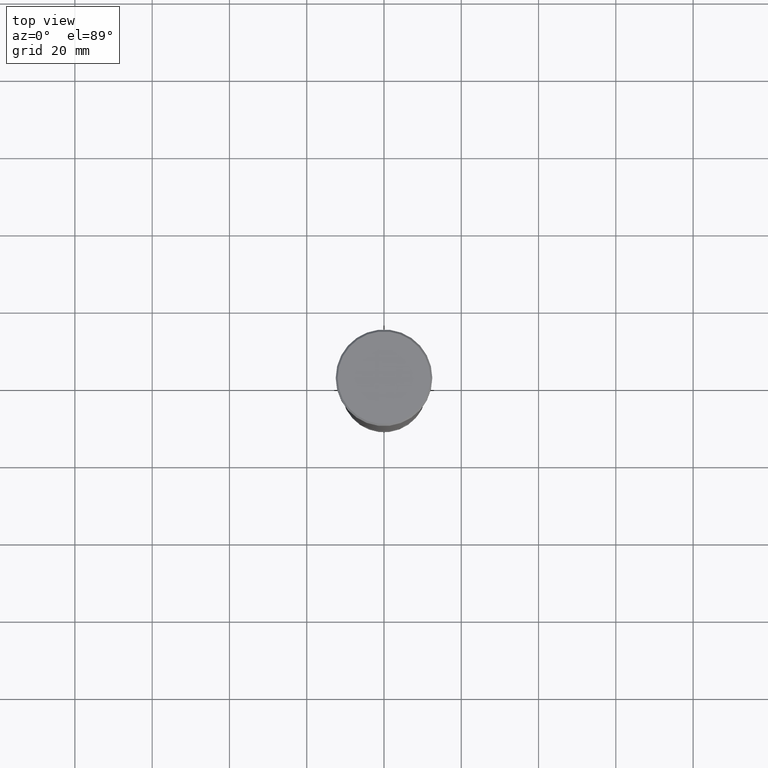
[diagram: clean part render]
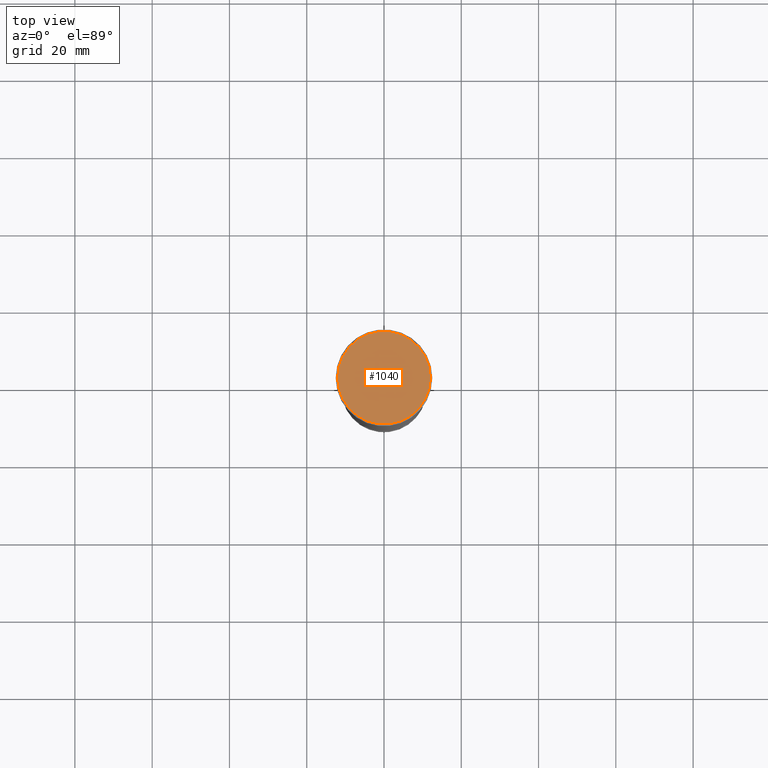
[diagram: same view with one face highlighted and labeled with its STEP entity id]
A machine part, top view. The second image highlights one B-rep face of the part: STEP entity #1040.
In plain terms, the highlighted planar face has unit normal (0, -0, 1).
Its self-contained STEP definition (entity closure, byte-faithful):
#8 = VERTEX_POINT ( 'NONE', #822 ) ;
#16 = DIRECTION ( 'NONE',  ( 0.000000000000000000, -0.000000000000000000, 1.000000000000000000 ) ) ;
#81 = DIRECTION ( 'NONE',  ( -0.000000000000000000, -0.000000000000000000, 1.000000000000000000 ) ) ;
#104 = CARTESIAN_POINT ( 'NONE',  ( 0.000000000000000000, 0.000000000000000000, 0.000000000000000000 ) ) ;
#195 = EDGE_CURVE ( 'NONE', #209, #8, #284, .T. ) ;
#209 = VERTEX_POINT ( 'NONE', #784 ) ;
#273 = AXIS2_PLACEMENT_3D ( 'NONE', #104, #16, #366 ) ;
#284 = CIRCLE ( 'NONE', #615, 12.00000000000000355 ) ;
#322 = CIRCLE ( 'NONE', #340, 12.00000000000000355 ) ;
#340 = AXIS2_PLACEMENT_3D ( 'NONE', #675, #478, #848 ) ;
#366 = DIRECTION ( 'NONE',  ( 1.000000000000000000, 0.000000000000000000, 0.000000000000000000 ) ) ;
#445 = EDGE_CURVE ( 'NONE', #8, #209, #322, .T. ) ;
#478 = DIRECTION ( 'NONE',  ( -0.000000000000000000, -0.000000000000000000, 1.000000000000000000 ) ) ;
#535 = FACE_OUTER_BOUND ( 'NONE', #648, .T. ) ;
#559 = ORIENTED_EDGE ( 'NONE', *, *, #445, .T. ) ;
#615 = AXIS2_PLACEMENT_3D ( 'NONE', #868, #81, #1145 ) ;
#648 = EDGE_LOOP ( 'NONE', ( #1004, #559 ) ) ;
#675 = CARTESIAN_POINT ( 'NONE',  ( 0.000000000000000000, 0.000000000000000000, 0.000000000000000000 ) ) ;
#784 = CARTESIAN_POINT ( 'NONE',  ( -12.00000000000000355, 0.000000000000000000, 0.000000000000000000 ) ) ;
#822 = CARTESIAN_POINT ( 'NONE',  ( 12.00000000000000355, 1.500192328955507734E-15, 0.000000000000000000 ) ) ;
#848 = DIRECTION ( 'NONE',  ( 1.000000000000000000, 0.000000000000000000, 0.000000000000000000 ) ) ;
#868 = CARTESIAN_POINT ( 'NONE',  ( 0.000000000000000000, 0.000000000000000000, 0.000000000000000000 ) ) ;
#891 = PLANE ( 'NONE',  #273 ) ;
#1004 = ORIENTED_EDGE ( 'NONE', *, *, #195, .T. ) ;
#1040 = ADVANCED_FACE ( 'NONE', ( #535 ), #891, .T. ) ;
#1145 = DIRECTION ( 'NONE',  ( 1.000000000000000000, 0.000000000000000000, 0.000000000000000000 ) ) ;